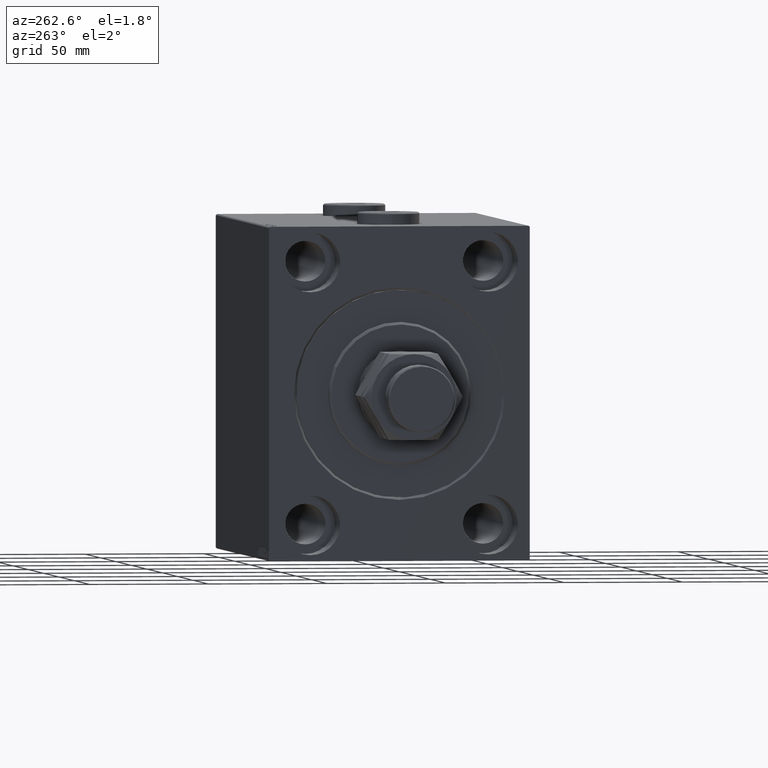
[diagram: clean part render]
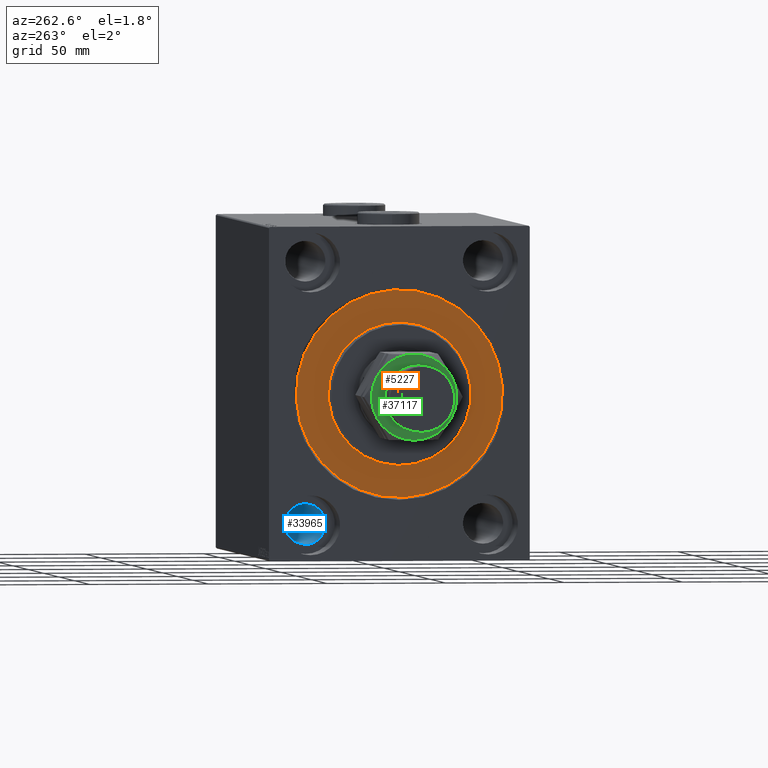
[diagram: same view with three faces highlighted in distinct colors, each labeled with its STEP entity id]
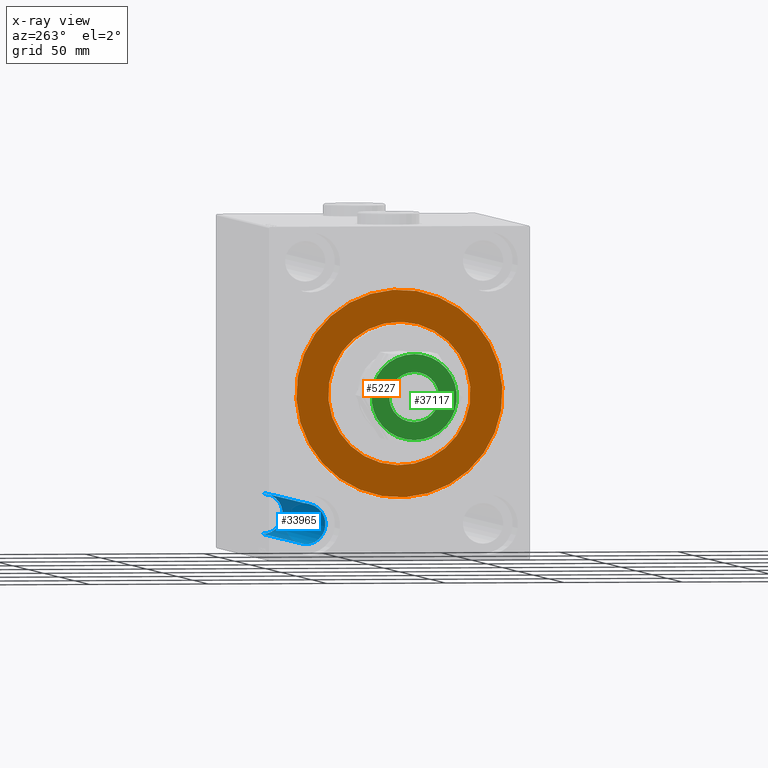
[diagram: x-ray of the same camera — body ghosted, the three highlighted faces saturated]
A machine part, auxiliary view with three faces highlighted in distinct colors.
The next image is the same camera in x-ray (body ghosted, the three faces saturated) — at least one of them is partly hidden behind the body in this view.
Their STEP definitions:

[orange] entity #5227 — the highlighted planar face has unit normal (1, 0, -0).
#466 = CARTESIAN_POINT ( 'NONE',  ( 0.000000000000000000, 0.000000000000000000, -43.50000000000000000 ) ) ;
#922 = PLANE ( 'NONE',  #47038 ) ;
#1173 = ORIENTED_EDGE ( 'NONE', *, *, #27284, .F. ) ;
#2290 = VERTEX_POINT ( 'NONE', #44182 ) ;
#4835 = AXIS2_PLACEMENT_3D ( 'NONE', #46300, #41777, #45342 ) ;
#5227 = ADVANCED_FACE ( 'NONE', ( #33513, #40174 ), #922, .F. ) ;
#6309 = EDGE_CURVE ( 'NONE', #40835, #9691, #36445, .T. ) ;
#6594 = DIRECTION ( 'NONE',  ( 0.000000000000000000, 0.000000000000000000, -1.000000000000000000 ) ) ;
#9691 = VERTEX_POINT ( 'NONE', #32505 ) ;
#12191 = AXIS2_PLACEMENT_3D ( 'NONE', #13512, #13751, #6594 ) ;
#13512 = CARTESIAN_POINT ( 'NONE',  ( 0.000000000000000000, 0.000000000000000000, 0.000000000000000000 ) ) ;
#13751 = DIRECTION ( 'NONE',  ( 1.000000000000000000, -0.000000000000000000, 0.000000000000000000 ) ) ;
#13909 = ORIENTED_EDGE ( 'NONE', *, *, #6309, .F. ) ;
#14098 = CIRCLE ( 'NONE', #42158, 43.50000000000000000 ) ;
#15129 = ORIENTED_EDGE ( 'NONE', *, *, #43209, .F. ) ;
#16703 = AXIS2_PLACEMENT_3D ( 'NONE', #31572, #46303, #17764 ) ;
#17517 = CIRCLE ( 'NONE', #12191, 30.00000000000000000 ) ;
#17764 = DIRECTION ( 'NONE',  ( 0.000000000000000000, 0.000000000000000000, -1.000000000000000000 ) ) ;
#19240 = DIRECTION ( 'NONE',  ( -1.000000000000000000, 0.000000000000000000, 0.000000000000000000 ) ) ;
#20695 = VERTEX_POINT ( 'NONE', #466 ) ;
#22531 = CARTESIAN_POINT ( 'NONE',  ( 0.000000000000000000, 0.000000000000000000, 0.000000000000000000 ) ) ;
#24047 = CARTESIAN_POINT ( 'NONE',  ( 0.000000000000000000, 0.000000000000000000, 30.00000000000000000 ) ) ;
#26450 = ORIENTED_EDGE ( 'NONE', *, *, #46390, .F. ) ;
#27284 = EDGE_CURVE ( 'NONE', #9691, #40835, #17517, .T. ) ;
#29908 = DIRECTION ( 'NONE',  ( -1.000000000000000000, 0.000000000000000000, 0.000000000000000000 ) ) ;
#30177 = CARTESIAN_POINT ( 'NONE',  ( 0.000000000000000000, 0.000000000000000000, 0.000000000000000000 ) ) ;
#31572 = CARTESIAN_POINT ( 'NONE',  ( 0.000000000000000000, 0.000000000000000000, 0.000000000000000000 ) ) ;
#32505 = CARTESIAN_POINT ( 'NONE',  ( 0.000000000000000000, 3.673940397442059178E-15, -30.00000000000000000 ) ) ;
#33513 = FACE_BOUND ( 'NONE', #34490, .T. ) ;
#33745 = DIRECTION ( 'NONE',  ( 0.000000000000000000, 0.000000000000000000, 1.000000000000000000 ) ) ;
#34490 = EDGE_LOOP ( 'NONE', ( #13909, #1173 ) ) ;
#36445 = CIRCLE ( 'NONE', #16703, 30.00000000000000000 ) ;
#36802 = DIRECTION ( 'NONE',  ( 0.000000000000000000, 0.000000000000000000, 1.000000000000000000 ) ) ;
#40174 = FACE_OUTER_BOUND ( 'NONE', #42610, .T. ) ;
#40835 = VERTEX_POINT ( 'NONE', #24047 ) ;
#41777 = DIRECTION ( 'NONE',  ( -1.000000000000000000, 0.000000000000000000, 0.000000000000000000 ) ) ;
#42158 = AXIS2_PLACEMENT_3D ( 'NONE', #22531, #29908, #36802 ) ;
#42610 = EDGE_LOOP ( 'NONE', ( #26450, #15129 ) ) ;
#43209 = EDGE_CURVE ( 'NONE', #2290, #20695, #46609, .T. ) ;
#44182 = CARTESIAN_POINT ( 'NONE',  ( 0.000000000000000000, 5.327213576290986044E-15, 43.50000000000000000 ) ) ;
#45342 = DIRECTION ( 'NONE',  ( 0.000000000000000000, 0.000000000000000000, 1.000000000000000000 ) ) ;
#46300 = CARTESIAN_POINT ( 'NONE',  ( 0.000000000000000000, 0.000000000000000000, 0.000000000000000000 ) ) ;
#46303 = DIRECTION ( 'NONE',  ( 1.000000000000000000, -0.000000000000000000, 0.000000000000000000 ) ) ;
#46390 = EDGE_CURVE ( 'NONE', #20695, #2290, #14098, .T. ) ;
#46609 = CIRCLE ( 'NONE', #4835, 43.50000000000000000 ) ;
#47038 = AXIS2_PLACEMENT_3D ( 'NONE', #30177, #19240, #33745 ) ;

[blue] entity #33965 — the highlighted cylindrical surface (edge-blend (fillet) strip) has radius 8.5 mm, axis along (-1, -0, -0).
#21 = LINE ( 'NONE', #21687, #44814 ) ;
#649 = CARTESIAN_POINT ( 'NONE',  ( 173.0000000000000000, 37.49999999999997868, -63.49999999999998579 ) ) ;
#5293 = ORIENTED_EDGE ( 'NONE', *, *, #24381, .F. ) ;
#5573 = EDGE_LOOP ( 'NONE', ( #5293, #38628, #15001, #38558 ) ) ;
#10691 = CARTESIAN_POINT ( 'NONE',  ( 173.0000000000000000, 37.49999999999997868, -54.99999999999999289 ) ) ;
#12021 = VERTEX_POINT ( 'NONE', #44910 ) ;
#13024 = DIRECTION ( 'NONE',  ( 0.000000000000000000, 0.000000000000000000, -1.000000000000000000 ) ) ;
#15001 = ORIENTED_EDGE ( 'NONE', *, *, #24684, .T. ) ;
#15204 = CARTESIAN_POINT ( 'NONE',  ( 155.9999999999999716, 37.49999999999997868, -46.50000000000000000 ) ) ;
#17071 = VERTEX_POINT ( 'NONE', #27473 ) ;
#17415 = CIRCLE ( 'NONE', #18176, 8.499999999999992895 ) ;
#18033 = LINE ( 'NONE', #649, #24293 ) ;
#18106 = DIRECTION ( 'NONE',  ( -1.000000000000000000, -0.000000000000000000, -0.000000000000000000 ) ) ;
#18176 = AXIS2_PLACEMENT_3D ( 'NONE', #26800, #44888, #13024 ) ;
#21635 = CYLINDRICAL_SURFACE ( 'NONE', #38189, 8.499999999999992895 ) ;
#21687 = CARTESIAN_POINT ( 'NONE',  ( 173.0000000000000000, 37.49999999999997868, -46.50000000000000000 ) ) ;
#21788 = EDGE_CURVE ( 'NONE', #12021, #39158, #18033, .T. ) ;
#21805 = DIRECTION ( 'NONE',  ( -1.000000000000000000, 0.000000000000000000, 0.000000000000000000 ) ) ;
#24293 = VECTOR ( 'NONE', #28959, 1000.000000000000000 ) ;
#24381 = EDGE_CURVE ( 'NONE', #12021, #34893, #17415, .T. ) ;
#24684 = EDGE_CURVE ( 'NONE', #39158, #17071, #31107, .T. ) ;
#26056 = CARTESIAN_POINT ( 'NONE',  ( 17.00000000000001421, 37.49999999999997868, -54.99999999999999289 ) ) ;
#26800 = CARTESIAN_POINT ( 'NONE',  ( 155.9999999999999716, 37.49999999999997868, -54.99999999999999289 ) ) ;
#26960 = EDGE_CURVE ( 'NONE', #34893, #17071, #21, .T. ) ;
#27473 = CARTESIAN_POINT ( 'NONE',  ( 17.00000000000001421, 37.49999999999997868, -46.50000000000000000 ) ) ;
#28959 = DIRECTION ( 'NONE',  ( -1.000000000000000000, -0.000000000000000000, -0.000000000000000000 ) ) ;
#31107 = CIRCLE ( 'NONE', #35671, 8.499999999999992895 ) ;
#33965 = ADVANCED_FACE ( 'NONE', ( #43262 ), #21635, .F. ) ;
#34893 = VERTEX_POINT ( 'NONE', #15204 ) ;
#35671 = AXIS2_PLACEMENT_3D ( 'NONE', #26056, #21805, #36297 ) ;
#36297 = DIRECTION ( 'NONE',  ( 0.000000000000000000, 0.000000000000000000, 1.000000000000000000 ) ) ;
#38189 = AXIS2_PLACEMENT_3D ( 'NONE', #10691, #43728, #39694 ) ;
#38558 = ORIENTED_EDGE ( 'NONE', *, *, #26960, .F. ) ;
#38628 = ORIENTED_EDGE ( 'NONE', *, *, #21788, .T. ) ;
#39158 = VERTEX_POINT ( 'NONE', #45145 ) ;
#39694 = DIRECTION ( 'NONE',  ( 0.000000000000000000, 0.000000000000000000, 1.000000000000000000 ) ) ;
#43262 = FACE_OUTER_BOUND ( 'NONE', #5573, .T. ) ;
#43728 = DIRECTION ( 'NONE',  ( -1.000000000000000000, -0.000000000000000000, -0.000000000000000000 ) ) ;
#44814 = VECTOR ( 'NONE', #18106, 1000.000000000000000 ) ;
#44888 = DIRECTION ( 'NONE',  ( -1.000000000000000000, -0.000000000000000000, -0.000000000000000000 ) ) ;
#44910 = CARTESIAN_POINT ( 'NONE',  ( 155.9999999999999716, 37.49999999999997868, -63.49999999999998579 ) ) ;
#45145 = CARTESIAN_POINT ( 'NONE',  ( 17.00000000000001421, 37.49999999999997868, -63.49999999999998579 ) ) ;

[green] entity #37117 — the highlighted planar face has unit normal (-1, 0, 0).
#516 = DIRECTION ( 'NONE',  ( 1.000000000000000000, 0.000000000000000000, 0.000000000000000000 ) ) ;
#684 = CIRCLE ( 'NONE', #12952, 17.99999999999999645 ) ;
#799 = ORIENTED_EDGE ( 'NONE', *, *, #36714, .T. ) ;
#1200 = DIRECTION ( 'NONE',  ( 1.000000000000000000, 0.000000000000000000, -0.000000000000000000 ) ) ;
#1495 = AXIS2_PLACEMENT_3D ( 'NONE', #24425, #20873, #35837 ) ;
#1718 = CIRCLE ( 'NONE', #12356, 10.49999999999999822 ) ;
#4420 = DIRECTION ( 'NONE',  ( 1.000000000000000000, 0.000000000000000000, 0.000000000000000000 ) ) ;
#4847 = EDGE_CURVE ( 'NONE', #26448, #28042, #23503, .T. ) ;
#4903 = CARTESIAN_POINT ( 'NONE',  ( 0.000000000000000000, 0.000000000000000000, 34.00000000000000000 ) ) ;
#6317 = EDGE_CURVE ( 'NONE', #10565, #26448, #21299, .T. ) ;
#6362 = AXIS2_PLACEMENT_3D ( 'NONE', #4903, #34154, #4420 ) ;
#7180 = DIRECTION ( 'NONE',  ( 1.000000000000000000, 0.000000000000000000, 0.000000000000000000 ) ) ;
#10061 = CARTESIAN_POINT ( 'NONE',  ( -10.49999999999999822, 1.285879139104720633E-15, 34.00000000000000000 ) ) ;
#10565 = VERTEX_POINT ( 'NONE', #35327 ) ;
#10662 = VERTEX_POINT ( 'NONE', #20111 ) ;
#10756 = CARTESIAN_POINT ( 'NONE',  ( 0.000000000000000000, 0.000000000000000000, 34.00000000000000000 ) ) ;
#11119 = CARTESIAN_POINT ( 'NONE',  ( 10.49999999999999822, 0.000000000000000000, 34.00000000000000000 ) ) ;
#11450 = ORIENTED_EDGE ( 'NONE', *, *, #6317, .T. ) ;
#11846 = EDGE_CURVE ( 'NONE', #21920, #10662, #22496, .T. ) ;
#11919 = CARTESIAN_POINT ( 'NONE',  ( 0.000000000000000000, 0.000000000000000000, 34.00000000000000000 ) ) ;
#12155 = DIRECTION ( 'NONE',  ( 0.000000000000000000, 0.000000000000000000, 1.000000000000000000 ) ) ;
#12356 = AXIS2_PLACEMENT_3D ( 'NONE', #15792, #19129, #26471 ) ;
#12952 = AXIS2_PLACEMENT_3D ( 'NONE', #29800, #25990, #30031 ) ;
#13161 = DIRECTION ( 'NONE',  ( -0.000000000000000000, -0.000000000000000000, -1.000000000000000000 ) ) ;
#15368 = VERTEX_POINT ( 'NONE', #11119 ) ;
#15792 = CARTESIAN_POINT ( 'NONE',  ( 0.000000000000000000, 0.000000000000000000, 34.00000000000000000 ) ) ;
#15959 = CARTESIAN_POINT ( 'NONE',  ( -17.99999999999999645, 0.000000000000000000, 34.00000000000000000 ) ) ;
#19129 = DIRECTION ( 'NONE',  ( -0.000000000000000000, -0.000000000000000000, -1.000000000000000000 ) ) ;
#19263 = AXIS2_PLACEMENT_3D ( 'NONE', #11919, #12155, #516 ) ;
#19721 = EDGE_LOOP ( 'NONE', ( #37404, #41647, #11450, #43654, #21796, #41523 ) ) ;
#19996 = PLANE ( 'NONE',  #32975 ) ;
#20111 = CARTESIAN_POINT ( 'NONE',  ( 9.000000000000001776, -15.58845726811988897, 34.00000000000000000 ) ) ;
#20873 = DIRECTION ( 'NONE',  ( 0.000000000000000000, 0.000000000000000000, 1.000000000000000000 ) ) ;
#21299 = CIRCLE ( 'NONE', #1495, 17.99999999999999645 ) ;
#21796 = ORIENTED_EDGE ( 'NONE', *, *, #36182, .T. ) ;
#21920 = VERTEX_POINT ( 'NONE', #31074 ) ;
#22349 = CIRCLE ( 'NONE', #34495, 10.49999999999999822 ) ;
#22496 = CIRCLE ( 'NONE', #23235, 17.99999999999999645 ) ;
#23235 = AXIS2_PLACEMENT_3D ( 'NONE', #43507, #36148, #36609 ) ;
#23503 = CIRCLE ( 'NONE', #44756, 17.99999999999999645 ) ;
#23606 = EDGE_CURVE ( 'NONE', #10662, #31271, #684, .T. ) ;
#23831 = CIRCLE ( 'NONE', #6362, 17.99999999999999645 ) ;
#24425 = CARTESIAN_POINT ( 'NONE',  ( 0.000000000000000000, 0.000000000000000000, 34.00000000000000000 ) ) ;
#25990 = DIRECTION ( 'NONE',  ( 0.000000000000000000, 0.000000000000000000, 1.000000000000000000 ) ) ;
#26448 = VERTEX_POINT ( 'NONE', #31515 ) ;
#26471 = DIRECTION ( 'NONE',  ( 1.000000000000000000, 0.000000000000000000, 0.000000000000000000 ) ) ;
#28042 = VERTEX_POINT ( 'NONE', #15959 ) ;
#28823 = DIRECTION ( 'NONE',  ( 0.000000000000000000, 0.000000000000000000, 1.000000000000000000 ) ) ;
#29800 = CARTESIAN_POINT ( 'NONE',  ( 0.000000000000000000, 0.000000000000000000, 34.00000000000000000 ) ) ;
#29926 = CIRCLE ( 'NONE', #19263, 17.99999999999999645 ) ;
#30031 = DIRECTION ( 'NONE',  ( 1.000000000000000000, 0.000000000000000000, 0.000000000000000000 ) ) ;
#31074 = CARTESIAN_POINT ( 'NONE',  ( -9.000000000000000000, -15.58845726811989074, 34.00000000000000000 ) ) ;
#31271 = VERTEX_POINT ( 'NONE', #43560 ) ;
#31515 = CARTESIAN_POINT ( 'NONE',  ( -9.000000000000000000, 15.58845726811988897, 34.00000000000000000 ) ) ;
#32975 = AXIS2_PLACEMENT_3D ( 'NONE', #34491, #37593, #1200 ) ;
#33110 = EDGE_CURVE ( 'NONE', #15368, #36822, #1718, .T. ) ;
#34154 = DIRECTION ( 'NONE',  ( 0.000000000000000000, 0.000000000000000000, 1.000000000000000000 ) ) ;
#34263 = FACE_OUTER_BOUND ( 'NONE', #19721, .T. ) ;
#34491 = CARTESIAN_POINT ( 'NONE',  ( 0.000000000000000000, 0.000000000000000000, 34.00000000000000000 ) ) ;
#34495 = AXIS2_PLACEMENT_3D ( 'NONE', #45723, #13161, #45242 ) ;
#35327 = CARTESIAN_POINT ( 'NONE',  ( 8.999999999999998224, 15.58845726811989074, 34.00000000000000000 ) ) ;
#35837 = DIRECTION ( 'NONE',  ( 1.000000000000000000, 0.000000000000000000, 0.000000000000000000 ) ) ;
#35919 = EDGE_CURVE ( 'NONE', #31271, #10565, #29926, .T. ) ;
#36148 = DIRECTION ( 'NONE',  ( 0.000000000000000000, 0.000000000000000000, 1.000000000000000000 ) ) ;
#36182 = EDGE_CURVE ( 'NONE', #28042, #21920, #23831, .T. ) ;
#36609 = DIRECTION ( 'NONE',  ( 1.000000000000000000, 0.000000000000000000, 0.000000000000000000 ) ) ;
#36640 = ORIENTED_EDGE ( 'NONE', *, *, #33110, .T. ) ;
#36714 = EDGE_CURVE ( 'NONE', #36822, #15368, #22349, .T. ) ;
#36822 = VERTEX_POINT ( 'NONE', #10061 ) ;
#37117 = ADVANCED_FACE ( 'NONE', ( #41389, #34263 ), #19996, .T. ) ;
#37404 = ORIENTED_EDGE ( 'NONE', *, *, #23606, .T. ) ;
#37593 = DIRECTION ( 'NONE',  ( 0.000000000000000000, 0.000000000000000000, 1.000000000000000000 ) ) ;
#41389 = FACE_BOUND ( 'NONE', #46890, .T. ) ;
#41523 = ORIENTED_EDGE ( 'NONE', *, *, #11846, .T. ) ;
#41647 = ORIENTED_EDGE ( 'NONE', *, *, #35919, .T. ) ;
#43507 = CARTESIAN_POINT ( 'NONE',  ( 0.000000000000000000, 0.000000000000000000, 34.00000000000000000 ) ) ;
#43560 = CARTESIAN_POINT ( 'NONE',  ( 17.99999999999999645, 0.000000000000000000, 34.00000000000000000 ) ) ;
#43654 = ORIENTED_EDGE ( 'NONE', *, *, #4847, .T. ) ;
#44756 = AXIS2_PLACEMENT_3D ( 'NONE', #10756, #28823, #7180 ) ;
#45242 = DIRECTION ( 'NONE',  ( 1.000000000000000000, 0.000000000000000000, 0.000000000000000000 ) ) ;
#45723 = CARTESIAN_POINT ( 'NONE',  ( 0.000000000000000000, 0.000000000000000000, 34.00000000000000000 ) ) ;
#46890 = EDGE_LOOP ( 'NONE', ( #36640, #799 ) ) ;